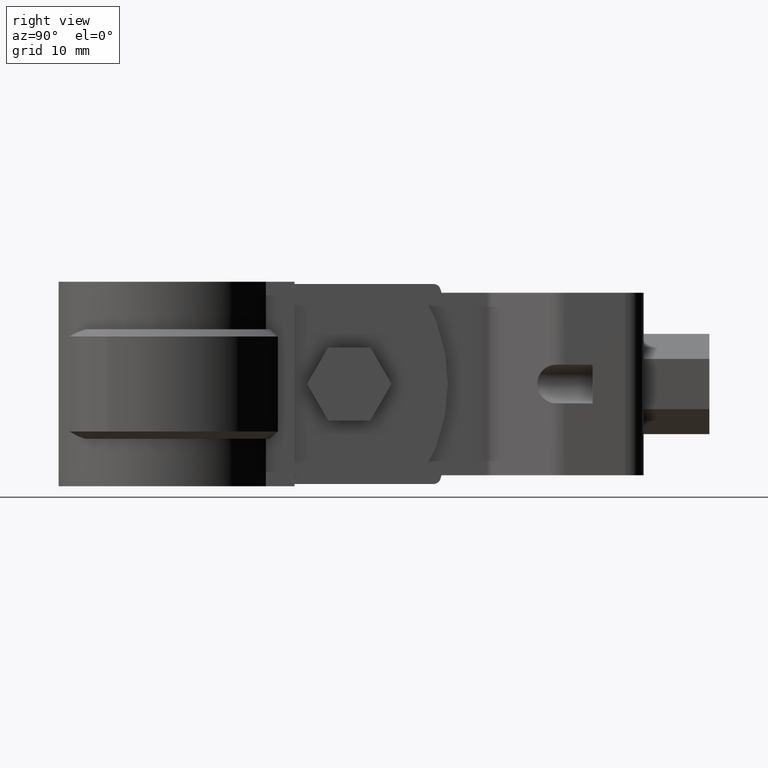
[diagram: clean part render]
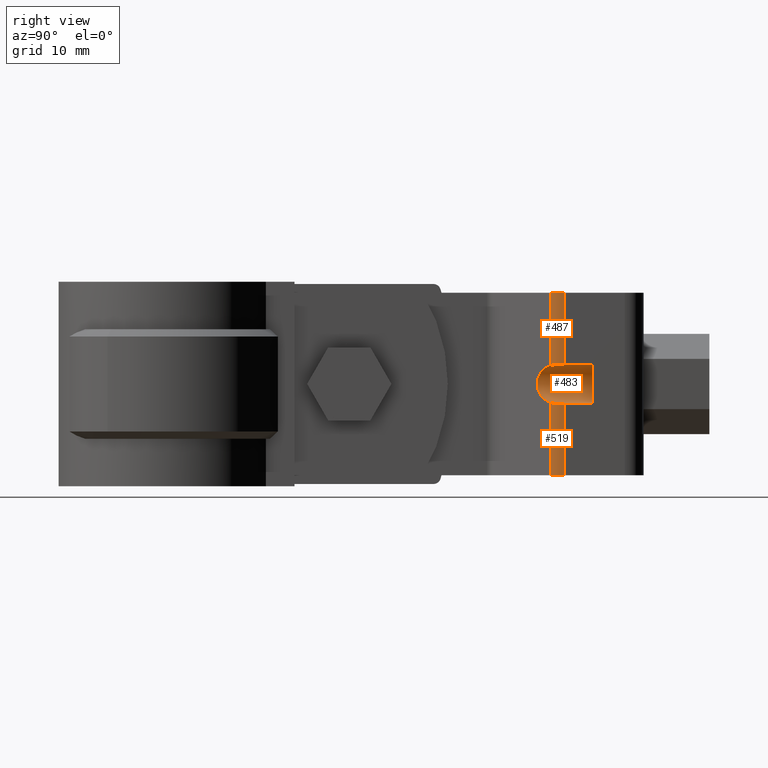
[diagram: same view with one multi-face feature highlighted, each face labeled with its STEP entity id]
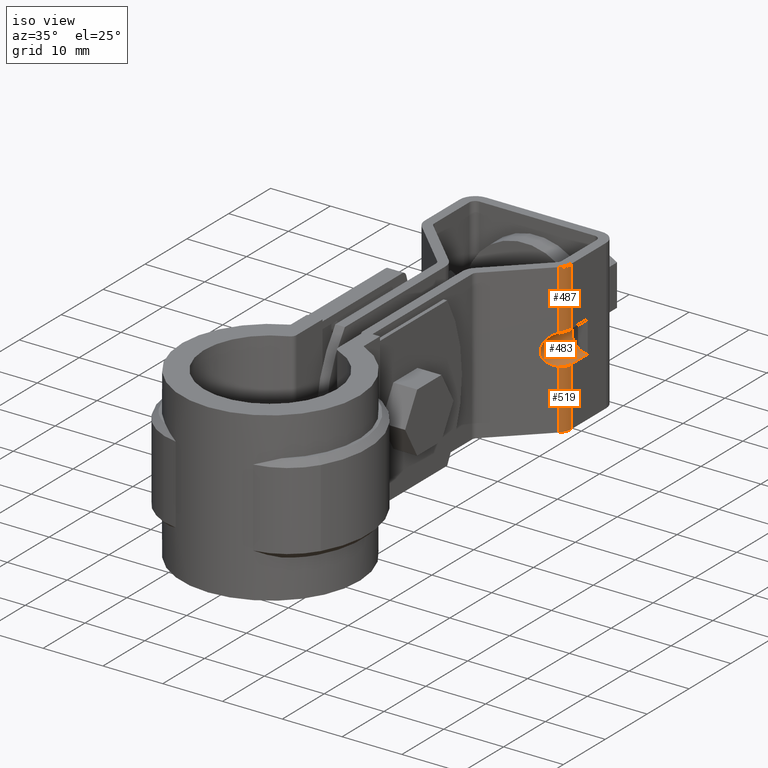
[diagram: same view with one multi-face feature highlighted, each face labeled with its STEP entity id]
A machine part, right view. The highlighted faces form ONE feature: a constant-radius fillet chain: 3 tangent blend faces with common blend radius 2.61667 mm. The faces share edges in the B-rep.
A second angle (iso view) of the same feature is appended — it is thin or edge-on in the first view.
Their STEP definitions:
[1] entity #483 (Cylinder):
#483 = ADVANCED_FACE( '', ( #939 ), #940, .F. );
#939 = FACE_OUTER_BOUND( '', #2023, .T. );
#940 = CYLINDRICAL_SURFACE( '', #2024, 2.64999999999997 );
#2023 = EDGE_LOOP( '', ( #4599, #4600, #4601, #4602, #4603, #4604, #4605, #4606 ) );
#2024 = AXIS2_PLACEMENT_3D( '', #4607, #4608, #4609 );
#4599 = ORIENTED_EDGE( '', *, *, #6673, .F. );
#4600 = ORIENTED_EDGE( '', *, *, #6674, .F. );
#4601 = ORIENTED_EDGE( '', *, *, #6675, .T. );
#4602 = ORIENTED_EDGE( '', *, *, #6676, .T. );
#4603 = ORIENTED_EDGE( '', *, *, #6677, .T. );
#4604 = ORIENTED_EDGE( '', *, *, #6678, .T. );
#4605 = ORIENTED_EDGE( '', *, *, #6679, .F. );
#4606 = ORIENTED_EDGE( '', *, *, #6680, .F. );
#4607 = CARTESIAN_POINT( '', ( 12.2500000001756, 48.2980146709976, -12.4999999884663 ) );
#4608 = DIRECTION( '', ( -8.53711502114339E-013, -1.00000000000000, -9.34504695848686E-011 ) );
#4609 = DIRECTION( '', ( -7.86596364060734E-013, -9.34504695848679E-011, 1.00000000000000 ) );
#6673 = EDGE_CURVE( '', #7845, #7846, #7847, .T. );
#6674 = EDGE_CURVE( '', #7848, #7845, #7849, .T. );
#6675 = EDGE_CURVE( '', #7848, #7850, #7851, .T. );
#6676 = EDGE_CURVE( '', #7850, #7852, #7853, .T. );
#6677 = EDGE_CURVE( '', #7852, #7854, #7855, .T. );
#6678 = EDGE_CURVE( '', #7854, #7856, #7857, .T. );
#6679 = EDGE_CURVE( '', #7858, #7856, #7859, .T. );
#6680 = EDGE_CURVE( '', #7846, #7858, #7860, .T. );
#7845 = VERTEX_POINT( '', #10872 );
#7846 = VERTEX_POINT( '', #10873 );
#7847 = ELLIPSE( '', #10874, 3.70224472166266, 2.64999999999997 );
#7848 = VERTEX_POINT( '', #10875 );
#7849 = B_SPLINE_CURVE_WITH_KNOTS( '', 3, ( #10876, #10877, #10878, #10879, #10880, #10881, #10882, #10883, #10884, #10885 ), .UNSPECIFIED., .F., .F., ( 4, 2, 2, 2, 4 ), ( 0.000000000000000, 0.000517346174284563, 0.00103469234856913, 0.00155203852285369, 0.00206938469713825 ), .UNSPECIFIED. );
#7850 = VERTEX_POINT( '', #10886 );
#7851 = LINE( '', #10887, #10888 );
#7852 = VERTEX_POINT( '', #10889 );
#7853 = CIRCLE( '', #10890, 2.64999999999997 );
#7854 = VERTEX_POINT( '', #10891 );
#7855 = CIRCLE( '', #10892, 2.64999999999997 );
#7856 = VERTEX_POINT( '', #10893 );
#7857 = CIRCLE( '', #10894, 2.64999999999997 );
#7858 = VERTEX_POINT( '', #10895 );
#7859 = LINE( '', #10896, #10897 );
#7860 = B_SPLINE_CURVE_WITH_KNOTS( '', 3, ( #10898, #10899, #10900, #10901, #10902, #10903, #10904, #10905 ), .UNSPECIFIED., .F., .F., ( 4, 2, 2, 4 ), ( 1.73472347597683E-018, 0.000516787748161300, 0.00103357549632260, 0.00206715099264519 ), .UNSPECIFIED. );
#10872 = CARTESIAN_POINT( '', ( 11.4656419725605, 52.5327873626011, -15.0312610343693 ) );
#10873 = CARTESIAN_POINT( '', ( 11.4656419725566, 52.5327873621280, -9.96873894177287 ) );
#10874 = AXIS2_PLACEMENT_3D( '', #12764, #12765, #12766 );
#10875 = CARTESIAN_POINT( '', ( 12.2500000001829, 54.3938204703596, -15.1499999878966 ) );
#10876 = CARTESIAN_POINT( '', ( 12.2500000001829, 54.3938204703596, -15.1499999878966 ) );
#10877 = CARTESIAN_POINT( '', ( 12.2500000001827, 54.2189304061114, -15.1499999879129 ) );
#10878 = CARTESIAN_POINT( '', ( 12.2325330355909, 54.0469879982058, -15.1501636839338 ) );
#10879 = CARTESIAN_POINT( '', ( 12.1640563526298, 53.7087728081976, -15.1488273511384 ) );
#10880 = CARTESIAN_POINT( '', ( 12.1121297118852, 53.5406419599155, -15.1472759408411 ) );
#10881 = CARTESIAN_POINT( '', ( 11.9772119362667, 53.2216085046808, -15.1367906242147 ) );
#10882 = CARTESIAN_POINT( '', ( 11.8947254706428, 53.0705972853287, -15.1279277715032 ) );
#10883 = CARTESIAN_POINT( '', ( 11.7003962038306, 52.7858442755073, -15.0942551978476 ) );
#10884 = CARTESIAN_POINT( '', ( 11.5880224300394, 52.6521829253553, -15.0691828814105 ) );
#10885 = CARTESIAN_POINT( '', ( 11.4656419725605, 52.5327873626011, -15.0312610343693 ) );
#10886 = CARTESIAN_POINT( '', ( 12.2500000001862, 58.2980146712453, -15.1499999875317 ) );
#10887 = CARTESIAN_POINT( '', ( 12.2500000001777, 48.2980146712452, -15.1499999884662 ) );
#10888 = VECTOR( '', #12767, 1000.00000000000 );
#10889 = CARTESIAN_POINT( '', ( 10.6500000001858, 58.2980146711964, -14.6124630049607 ) );
#10890 = AXIS2_PLACEMENT_3D( '', #12768, #12769, #12770 );
#10891 = CARTESIAN_POINT( '', ( 10.6500000001826, 58.2980146708016, -10.3875369701052 ) );
#10892 = AXIS2_PLACEMENT_3D( '', #12771, #12772, #12773 );
#10893 = CARTESIAN_POINT( '', ( 12.2500000001822, 58.2980146707500, -9.84999998753178 ) );
#10894 = AXIS2_PLACEMENT_3D( '', #12774, #12775, #12776 );
#10895 = CARTESIAN_POINT( '', ( 12.2500000001788, 54.3938204698643, -9.84999998789662 ) );
#10896 = CARTESIAN_POINT( '', ( 12.2500000001736, 48.2980146707500, -9.84999998846628 ) );
#10897 = VECTOR( '', #12777, 1000.00000000000 );
#10898 = CARTESIAN_POINT( '', ( 11.4656419725566, 52.5327873621280, -9.96873894177286 ) );
#10899 = CARTESIAN_POINT( '', ( 11.5880007596084, 52.6521617829960, -9.93082380969166 ) );
#10900 = CARTESIAN_POINT( '', ( 11.6979909727590, 52.7828607483630, -9.90626131823766 ) );
#10901 = CARTESIAN_POINT( '', ( 11.8919853002212, 53.0660553692249, -9.87244984992010 ) );
#10902 = CARTESIAN_POINT( '', ( 11.9765770459237, 53.2203805677570, -9.86327472012351 ) );
#10903 = CARTESIAN_POINT( '', ( 12.1789956026901, 53.6982134995955, -9.84749562861373 ) );
#10904 = CARTESIAN_POINT( '', ( 12.2500000001785, 54.0442786278171, -9.84999998792929 ) );
#10905 = CARTESIAN_POINT( '', ( 12.2500000001788, 54.3938204698643, -9.84999998789662 ) );
#12764 = CARTESIAN_POINT( '', ( 12.2500000001799, 53.2980146709978, -12.4999999879990 ) );
#12765 = DIRECTION( '', ( -0.698323835529886, 0.715781964519104, 6.63555304378239E-011 ) );
#12766 = DIRECTION( '', ( 0.715781964519104, 0.698323835529886, 6.58066864014530E-011 ) );
#12767 = DIRECTION( '', ( 8.53711502114338E-013, 1.00000000000000, 9.34504695848685E-011 ) );
#12768 = CARTESIAN_POINT( '', ( 12.2500000001842, 58.2980146709976, -12.4999999875317 ) );
#12769 = DIRECTION( '', ( 8.53711502114338E-013, 1.00000000000000, 9.34504695848685E-011 ) );
#12770 = DIRECTION( '', ( -7.64994147190080E-013, -9.34504695848679E-011, 1.00000000000000 ) );
#12771 = CARTESIAN_POINT( '', ( 12.2500000001842, 58.2980146709976, -12.4999999875317 ) );
#12772 = DIRECTION( '', ( 8.53711502114338E-013, 1.00000000000000, 9.34504695848685E-011 ) );
#12773 = DIRECTION( '', ( -7.64994147190080E-013, -9.34504695848679E-011, 1.00000000000000 ) );
#12774 = CARTESIAN_POINT( '', ( 12.2500000001842, 58.2980146709976, -12.4999999875317 ) );
#12775 = DIRECTION( '', ( 8.53711502114338E-013, 1.00000000000000, 9.34504695848685E-011 ) );
#12776 = DIRECTION( '', ( -7.64994147190080E-013, -9.34504695848679E-011, 1.00000000000000 ) );
#12777 = DIRECTION( '', ( 8.53711502114338E-013, 1.00000000000000, 9.34504695848685E-011 ) );
[2] entity #487 (Cylinder):
#487 = ADVANCED_FACE( '', ( #947 ), #948, .T. );
#947 = FACE_OUTER_BOUND( '', #2031, .T. );
#948 = CYLINDRICAL_SURFACE( '', #2032, 2.59999999999999 );
#2031 = EDGE_LOOP( '', ( #4633, #4634, #4635, #4636 ) );
#2032 = AXIS2_PLACEMENT_3D( '', #4637, #4638, #4639 );
#4633 = ORIENTED_EDGE( '', *, *, #6691, .F. );
#4634 = ORIENTED_EDGE( '', *, *, #6653, .F. );
#4635 = ORIENTED_EDGE( '', *, *, #6692, .T. );
#4636 = ORIENTED_EDGE( '', *, *, #6680, .T. );
#4637 = CARTESIAN_POINT( '', ( 9.65000000017131, 54.3938204689461, 1.21014170906264E-008 ) );
#4638 = DIRECTION( '', ( -7.65540480244708E-013, -9.34504695848679E-011, 1.00000000000000 ) );
#4639 = DIRECTION( '', ( 8.53711502114338E-013, 1.00000000000000, 9.34504695848685E-011 ) );
#6653 = EDGE_CURVE( '', #7807, #7809, #7810, .T. );
#6680 = EDGE_CURVE( '', #7846, #7858, #7860, .T. );
#6691 = EDGE_CURVE( '', #7809, #7858, #7877, .T. );
#6692 = EDGE_CURVE( '', #7807, #7846, #7878, .T. );
#7807 = VERTEX_POINT( '', #10822 );
#7809 = VERTEX_POINT( '', #10825 );
#7810 = CIRCLE( '', #10826, 2.59999999999999 );
#7846 = VERTEX_POINT( '', #10873 );
#7858 = VERTEX_POINT( '', #10895 );
#7860 = B_SPLINE_CURVE_WITH_KNOTS( '', 3, ( #10898, #10899, #10900, #10901, #10902, #10903, #10904, #10905 ), .UNSPECIFIED., .F., .F., ( 4, 2, 2, 4 ), ( 1.73472347597683E-018, 0.000516787748161300, 0.00103357549632260, 0.00206715099264519 ), .UNSPECIFIED. );
#7877 = LINE( '', #10938, #10939 );
#7878 = LINE( '', #10940, #10941 );
#10822 = CARTESIAN_POINT( '', ( 11.4656419725490, 52.5327873611964, 1.19288884325996E-008 ) );
#10825 = CARTESIAN_POINT( '', ( 12.2500000001713, 54.3938204689439, 1.21034016142829E-008 ) );
#10826 = AXIS2_PLACEMENT_3D( '', #12726, #12727, #12728 );
#10873 = CARTESIAN_POINT( '', ( 11.4656419725566, 52.5327873621280, -9.96873894177287 ) );
#10895 = CARTESIAN_POINT( '', ( 12.2500000001788, 54.3938204698643, -9.84999998789662 ) );
#10898 = CARTESIAN_POINT( '', ( 11.4656419725566, 52.5327873621280, -9.96873894177286 ) );
#10899 = CARTESIAN_POINT( '', ( 11.5880007596084, 52.6521617829960, -9.93082380969166 ) );
#10900 = CARTESIAN_POINT( '', ( 11.6979909727590, 52.7828607483630, -9.90626131823766 ) );
#10901 = CARTESIAN_POINT( '', ( 11.8919853002212, 53.0660553692249, -9.87244984992010 ) );
#10902 = CARTESIAN_POINT( '', ( 11.9765770459237, 53.2203805677570, -9.86327472012351 ) );
#10903 = CARTESIAN_POINT( '', ( 12.1789956026901, 53.6982134995955, -9.84749562861373 ) );
#10904 = CARTESIAN_POINT( '', ( 12.2500000001785, 54.0442786278171, -9.84999998792929 ) );
#10905 = CARTESIAN_POINT( '', ( 12.2500000001788, 54.3938204698643, -9.84999998789662 ) );
#10938 = CARTESIAN_POINT( '', ( 12.2500000001713, 54.3938204689439, 1.21034016142829E-008 ) );
#10939 = VECTOR( '', #12790, 1000.00000000000 );
#10940 = CARTESIAN_POINT( '', ( 11.4656419725490, 52.5327873611964, 1.19288884325996E-008 ) );
#10941 = VECTOR( '', #12791, 1000.00000000000 );
#12726 = CARTESIAN_POINT( '', ( 9.65000000017131, 54.3938204689461, 1.21014170906264E-008 ) );
#12727 = DIRECTION( '', ( -7.65540480244704E-013, -9.34504695848679E-011, 1.00000000000000 ) );
#12728 = DIRECTION( '', ( 0.698323835529889, -0.715781964519102, -6.63555655402714E-011 ) );
#12790 = DIRECTION( '', ( 7.65540480244708E-013, 9.34504695848679E-011, -1.00000000000000 ) );
#12791 = DIRECTION( '', ( 7.65540480244708E-013, 9.34504695848679E-011, -1.00000000000000 ) );
[3] entity #519 (Cylinder):
#519 = ADVANCED_FACE( '', ( #1017 ), #1018, .T. );
#1017 = FACE_OUTER_BOUND( '', #2101, .T. );
#1018 = CYLINDRICAL_SURFACE( '', #2102, 2.59999999999999 );
#2101 = EDGE_LOOP( '', ( #4915, #4916, #4917, #4918 ) );
#2102 = AXIS2_PLACEMENT_3D( '', #4919, #4920, #4921 );
#4915 = ORIENTED_EDGE( '', *, *, #6766, .T. );
#4916 = ORIENTED_EDGE( '', *, *, #6759, .T. );
#4917 = ORIENTED_EDGE( '', *, *, #6693, .F. );
#4918 = ORIENTED_EDGE( '', *, *, #6674, .T. );
#4919 = CARTESIAN_POINT( '', ( 9.65000000017131, 54.3938204689461, 1.21014170906264E-008 ) );
#4920 = DIRECTION( '', ( -7.65540480244708E-013, -9.34504695848679E-011, 1.00000000000000 ) );
#4921 = DIRECTION( '', ( 8.53711502114338E-013, 1.00000000000000, 9.34504695848685E-011 ) );
#6674 = EDGE_CURVE( '', #7848, #7845, #7849, .T. );
#6693 = EDGE_CURVE( '', #7848, #7879, #7880, .T. );
#6759 = EDGE_CURVE( '', #7983, #7879, #7984, .T. );
#6766 = EDGE_CURVE( '', #7845, #7983, #7993, .T. );
#7845 = VERTEX_POINT( '', #10872 );
#7848 = VERTEX_POINT( '', #10875 );
#7849 = B_SPLINE_CURVE_WITH_KNOTS( '', 3, ( #10876, #10877, #10878, #10879, #10880, #10881, #10882, #10883, #10884, #10885 ), .UNSPECIFIED., .F., .F., ( 4, 2, 2, 2, 4 ), ( 0.000000000000000, 0.000517346174284563, 0.00103469234856913, 0.00155203852285369, 0.00206938469713825 ), .UNSPECIFIED. );
#7879 = VERTEX_POINT( '', #10942 );
#7880 = LINE( '', #10943, #10944 );
#7983 = VERTEX_POINT( '', #11114 );
#7984 = CIRCLE( '', #11115, 2.59999999999999 );
#7993 = LINE( '', #11128, #11129 );
#10872 = CARTESIAN_POINT( '', ( 11.4656419725605, 52.5327873626011, -15.0312610343693 ) );
#10875 = CARTESIAN_POINT( '', ( 12.2500000001829, 54.3938204703596, -15.1499999878966 ) );
#10876 = CARTESIAN_POINT( '', ( 12.2500000001829, 54.3938204703596, -15.1499999878966 ) );
#10877 = CARTESIAN_POINT( '', ( 12.2500000001827, 54.2189304061114, -15.1499999879129 ) );
#10878 = CARTESIAN_POINT( '', ( 12.2325330355909, 54.0469879982058, -15.1501636839338 ) );
#10879 = CARTESIAN_POINT( '', ( 12.1640563526298, 53.7087728081976, -15.1488273511384 ) );
#10880 = CARTESIAN_POINT( '', ( 12.1121297118852, 53.5406419599155, -15.1472759408411 ) );
#10881 = CARTESIAN_POINT( '', ( 11.9772119362667, 53.2216085046808, -15.1367906242147 ) );
#10882 = CARTESIAN_POINT( '', ( 11.8947254706428, 53.0705972853287, -15.1279277715032 ) );
#10883 = CARTESIAN_POINT( '', ( 11.7003962038306, 52.7858442755073, -15.0942551978476 ) );
#10884 = CARTESIAN_POINT( '', ( 11.5880224300394, 52.6521829253553, -15.0691828814105 ) );
#10885 = CARTESIAN_POINT( '', ( 11.4656419725605, 52.5327873626011, -15.0312610343693 ) );
#10942 = CARTESIAN_POINT( '', ( 12.2500000001904, 54.3938204712801, -24.9999999878966 ) );
#10943 = CARTESIAN_POINT( '', ( 12.2500000001713, 54.3938204689439, 1.21034016142829E-008 ) );
#10944 = VECTOR( '', #12792, 1000.00000000000 );
#11114 = CARTESIAN_POINT( '', ( 11.4656419725682, 52.5327873635327, -24.9999999880711 ) );
#11115 = AXIS2_PLACEMENT_3D( '', #12894, #12895, #12896 );
#11128 = CARTESIAN_POINT( '', ( 11.4656419725490, 52.5327873611964, 1.19288884325996E-008 ) );
#11129 = VECTOR( '', #12907, 1000.00000000000 );
#12792 = DIRECTION( '', ( 7.65540480244708E-013, 9.34504695848679E-011, -1.00000000000000 ) );
#12894 = CARTESIAN_POINT( '', ( 9.65000000019045, 54.3938204712824, -24.9999999878986 ) );
#12895 = DIRECTION( '', ( -7.65540480244704E-013, -9.34504695848679E-011, 1.00000000000000 ) );
#12896 = DIRECTION( '', ( 0.698323835529889, -0.715781964519102, -6.63555655402714E-011 ) );
#12907 = DIRECTION( '', ( 7.65540480244708E-013, 9.34504695848679E-011, -1.00000000000000 ) );